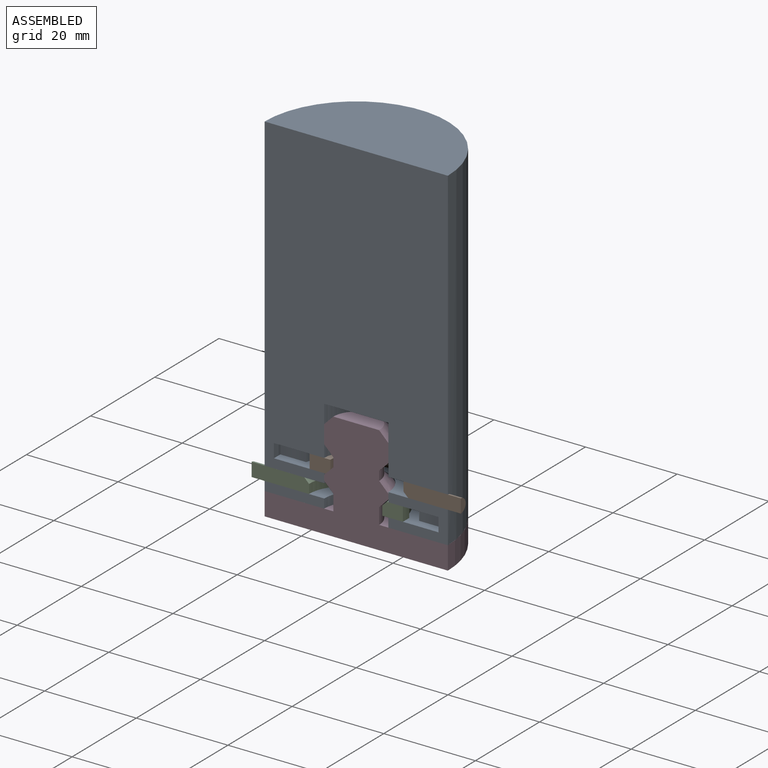
[diagram: assembled view]
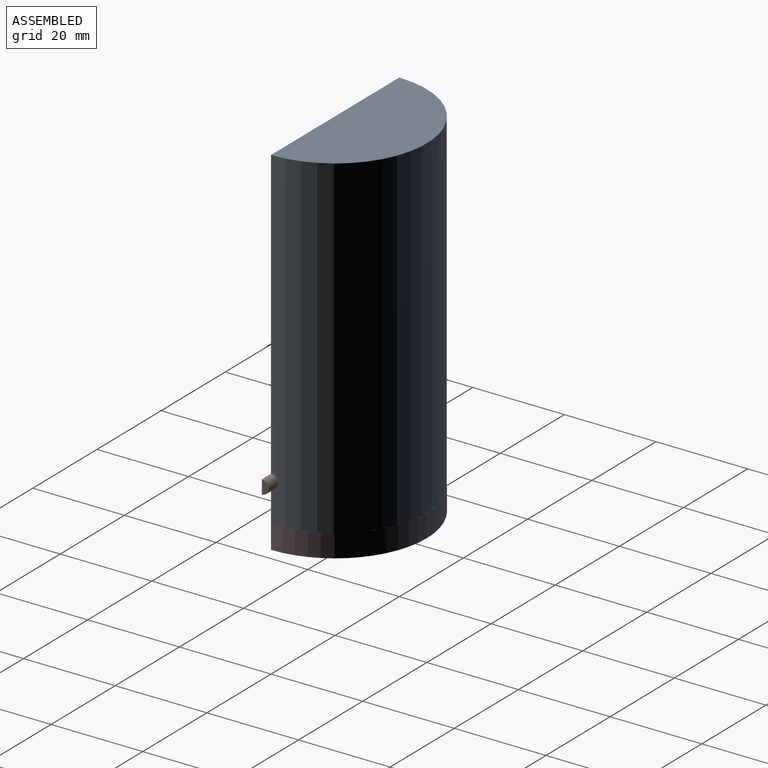
[diagram: assembled view, second angle]
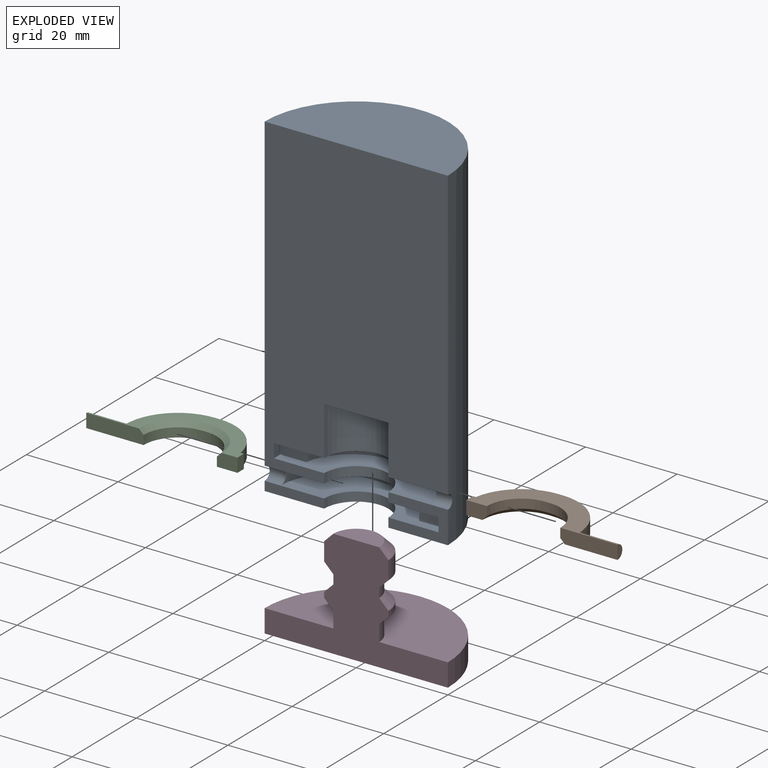
[diagram: exploded view]
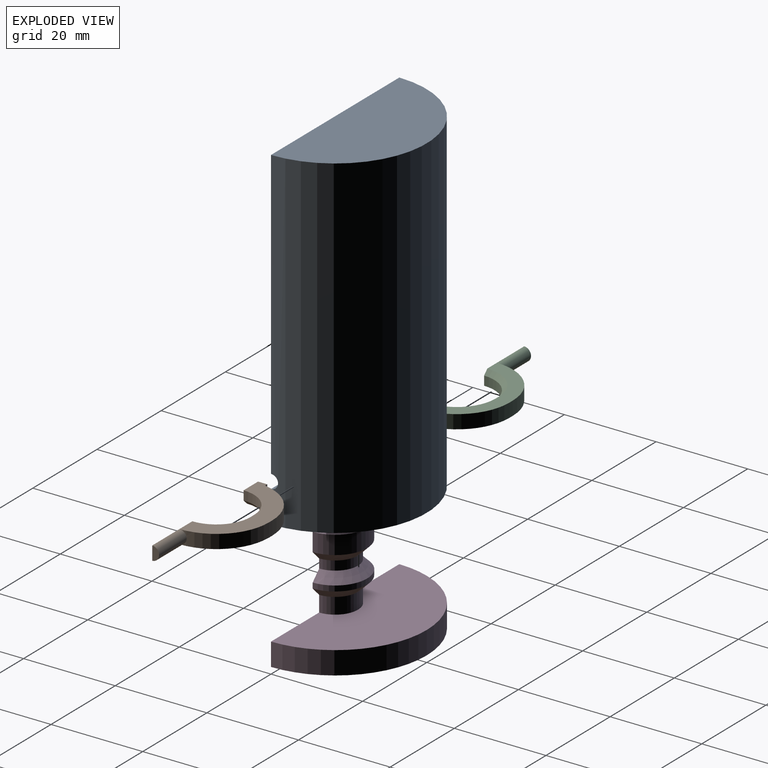
[diagram: exploded view, second angle]
ASSEMBLY  parts=4 mates=3
PART A: 26 faces, bbox 40x20x72.9 mm
  f0: cylinder r=7mm len=14mm, axis (0,0,-1), area 44mm2, adj f2,f13,f23,f24
  f1: plane 34.47x11.5mm, normal (0,0,1), area 210.8mm2, adj f4,f5,f6,f7,f8,f10,f24,f25
  f2: plane 34.47x11.5mm, normal (0,0,-1), area 210.8mm2, adj f0,f4,f5,f6,f7,f8,f23,f24
  f3: cylinder r=1.5mm len=3.6mm, axis (1,0,0), area 16.6mm2, adj f4,f12,f23,f25
  f4: cylinder r=11.5mm len=11.5mm, axis (0,0,1), area 50.7mm2, adj f1,f2,f3,f5
  f5: plane 6x3mm, normal (0,-1,0), area 18mm2, adj f1,f2,f4,f6
  f6: cylinder r=11.5mm len=11.32mm, axis (0,0,1), area 48.2mm2, adj f1,f2,f5,f7
  f7: plane 5.64x3mm, normal (0,-1,0), area 16.9mm2, adj f1,f2,f6,f8
  f8: plane 3x2mm, normal (-1,0,0), area 6mm2, adj f1,f2,f7,f24
  f9: plane 40x20mm, normal (0,0,1), area 628.3mm2, adj f12,f23
  f10: cylinder r=7mm len=14mm, axis (0,0,-1), area 44mm2, adj f1,f11,f24,f25
  f11: plane 40x20mm, normal (0,0,-1), area 551.3mm2, adj f10,f12,f24,f25
  f12: cylinder r=20mm len=72.88mm, axis (0,0,-1), area 4572.4mm2, adj f3,f9,f11,f15,f23,f24,f25
  f13: plane 34.47x11.5mm, normal (0,0,1), area 210.8mm2, adj f0,f16,f17,f18,f19,f20,f23,f24
  f14: plane 34.47x11.5mm, normal (0,0,-1), area 210.8mm2, adj f16,f17,f18,f19,f20,f22,f23
  f15: cylinder r=1.5mm len=3.6mm, axis (-1,0,0), area 16.6mm2, adj f12,f20,f23,f24
  f16: plane 3x2mm, normal (1,0,0), area 6mm2, adj f13,f14,f17,f23
  f17: plane 5.64x3mm, normal (0,-1,0), area 16.9mm2, adj f13,f14,f16,f18
  f18: cylinder r=11.5mm len=11.32mm, axis (0,0,1), area 48.2mm2, adj f13,f14,f17,f19
  f19: plane 6x3mm, normal (0,-1,0), area 18mm2, adj f13,f14,f18,f20
  f20: cylinder r=11.5mm len=11.5mm, axis (0,0,1), area 50.7mm2, adj f13,f14,f15,f19
  f21: plane 14x7mm, normal (0,0,-1), area 77mm2, adj f22,f23
  f22: cylinder r=7mm len=14mm, axis (0,0,-1), area 234.9mm2, adj f14,f21,f23
  f23: plane 67.88x40mm, normal (0,-1,0), area 2397.9mm2, adj f0,f2,f3,f9,f12,f13,f14,f15
  f24: plane 13x7mm, normal (0,-1,0), area 58.1mm2, adj f0,f1,f2,f8,f10,f11,f12,f13
  f25: plane 13x2mm, normal (0,-1,0), area 26mm2, adj f1,f3,f10,f11,f12
PART B: 17 faces, bbox 33x11.5x3 mm
  f0: cylinder r=7.5mm len=7.5mm, axis (0,0,-1), area 23.6mm2, adj f1,f9,f14,f15
  f1: plane 2x1mm, normal (0,-1,0), area 2mm2, adj f0,f2,f9,f13
  f2: cylinder r=7.5mm len=7.5mm, axis (0,0,-1), area 23.6mm2, adj f1,f9,f12,f16
  f3: plane 3x1mm, normal (0,1,0), area 3mm2, adj f4,f7,f8,f9
  f4: cylinder r=11.5mm len=11.5mm, axis (0,0,-1), area 50.7mm2, adj f3,f8,f9,f10
  f5: plane 3x2mm, normal (1,0,0), area 6mm2, adj f6,f8,f9,f16
  f6: plane 3x0.68mm, normal (0,1,0), area 2mm2, adj f5,f7,f8,f9
  f7: cylinder r=11.5mm len=11.32mm, axis (0,0,-1), area 48.2mm2, adj f3,f6,f8,f9
  f8: plane 24.5x11.5mm, normal (0,0,1), area 98.4mm2, adj f3,f4,f5,f6,f7,f12,f13,f14
  f9: plane 24.5x11.5mm, normal (0,0,-1), area 124.5mm2, adj f0,f1,f2,f3,f4,f5,f6,f7
  f10: cylinder r=1.5mm len=8.6mm, axis (1,0,0), area 40.3mm2, adj f4,f11,f15
  f11: plane 3x1.5mm, normal (-1,0,0), area 3.5mm2, adj f10,f15
  f12: cone r=7.5mm half-angle=45deg, axis (0,0,1), area 17.8mm2, adj f2,f8,f13,f16
  f13: plane 1x1mm, normal (0,-0.71,0.71), area 1.4mm2, adj f1,f8,f12,f14
  f14: cone r=7.5mm half-angle=45deg, axis (0,0,1), area 17.8mm2, adj f0,f8,f13,f15
  f15: plane 12.5x3mm, normal (0,-1,0), area 37mm2, adj f0,f8,f9,f10,f11,f14
  f16: plane 4.5x3mm, normal (0,-1,0), area 13mm2, adj f2,f5,f8,f9,f12
PART C: same geometry as B
PART D: 13 faces, bbox 40x20x23.7 mm
  f0: plane 40x20mm, normal (0,0,-1), area 628.3mm2, adj f4,f12
  f1: cone r=7mm half-angle=45deg, axis (0,0,1), area 53.3mm2, adj f2,f10,f12
  f2: cylinder r=5mm len=10mm, axis (0,0,-1), area 55mm2, adj f1,f3,f12
  f3: plane 40x20mm, normal (0,0,1), area 589mm2, adj f2,f4,f12
  f4: cylinder r=20mm len=40mm, axis (0,0,-1), area 314.2mm2, adj f0,f3,f12
  f5: plane 10x5mm, normal (0,0,1), area 39.3mm2, adj f11,f12
  f6: cylinder r=7mm len=14mm, axis (0,0,-1), area 88mm2, adj f7,f11,f12
  f7: cone r=5mm half-angle=45deg, axis (0,0,1), area 53.3mm2, adj f6,f8,f12
  f8: cylinder r=5mm len=10mm, axis (0,0,-1), area 31.4mm2, adj f7,f9,f12
  f9: cone r=7mm half-angle=45deg, axis (0,0,-1), area 53.3mm2, adj f8,f10,f12
  f10: cylinder r=7mm len=14mm, axis (0,0,-1), area 26mm2, adj f1,f9,f12
  f11: cone r=7mm half-angle=45deg, axis (0,0,-1), area 53.3mm2, adj f5,f6,f12
  f12: plane 40x23.68mm, normal (0,-1,0), area 423.6mm2, adj f0,f1,f2,f3,f4,f5,f6,f7
PLACE A t=(0,0,-5)mm fixed
PLACE B rot(axis=(0,1,0),180deg) t=(1.82,0,17)mm
PLACE C t=(-1.82,0,-5)mm
PLACE D t=(0,0,-5)mm
MATE slider A.f0 <-> D.f1  axis (0,0,-1) through (0,0,0)mm
MATE slider C.f10 <-> A.f3  axis (1,0,0) through (-22.82,0,3.5)mm
MATE slider B.f10 <-> A.f15  axis (1,0,0) through (22.82,0,8.5)mm
